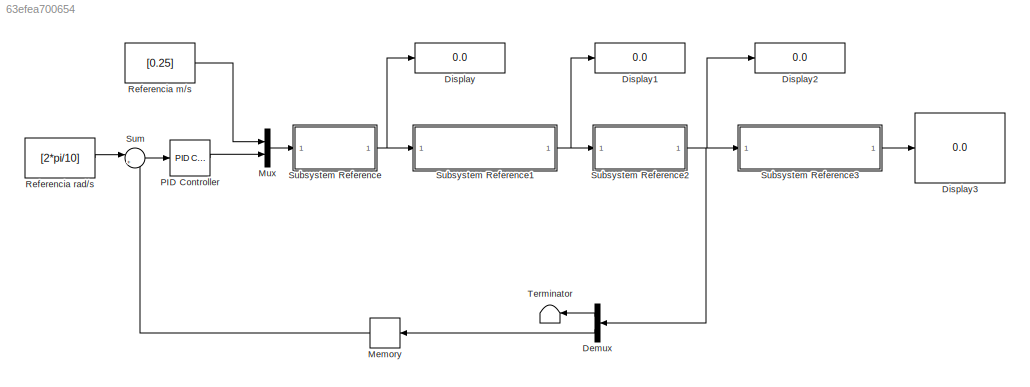
MODEL slx_63efea700654
KIND model
CONFIG AbsTol = auto
CONFIG EnableMultiTasking = on
CONFIG FixedStep = 0.01
CONFIG MaxStep = auto
CONFIG MinStep = auto
CONFIG RelTol = 1e-3
CONFIG SampleTimeConstraint = Unconstrained
CONFIG SolverName = FixedStepDiscrete
CONFIG StartTime = 0.0
CONFIG StopTime = 10.0
WORKSPACE source: mxarray member
WORKSPACE d = 0.195
BLOCK [Demux] Demux
  NameLocation = top
  Outputs = 2
BLOCK [Display] Display
  Decimation = 1
BLOCK [Display] Display1
  Decimation = 1
BLOCK [Display] Display2
  Decimation = 1
BLOCK [Display] Display3
  Decimation = 1
BLOCK [Memory] Memory
BLOCK [Mux] Mux
  DisplayOption = bar
  Inputs = 2
BLOCK [Reference] PID Controller  REF=slpidlib/PID Controller
  LibrarySourceBlock = simulink/Continuous/PID Controller
  SourceBlock = slpidlib/PID Controller
  SourceType = PID 1dof
BLOCK [Constant] Referencia m//s
  Value = [0.25]
BLOCK [Constant] Referencia rad//s
  Value = [2*pi/10]
BLOCK [SubSystem] Subsystem Reference
  ReferencedSubsystem = MCI
BLOCK [SubSystem] Subsystem Reference1
  ReferencedSubsystem = PieroControladoZ
BLOCK [SubSystem] Subsystem Reference2
  ReferencedSubsystem = MCD
BLOCK [SubSystem] Subsystem Reference3
  ReferencedSubsystem = OdometriaZ
BLOCK [Sum] Sum
  Inputs = |+-
BLOCK [Terminator] Terminator
  NameLocation = top
LINE Demux:1 -> Terminator:1
LINE Demux:2 -> Memory:1
LINE Memory:1 -> Sum:2
LINE Mux:1 -> Subsystem Reference:1
LINE PID Controller:1 -> Mux:2
LINE Referencia m//s:1 -> Mux:1
LINE Referencia rad//s:1 -> Sum:1
NET Subsystem Reference1:1 -> Display1:1, Subsystem Reference2:1
NET Subsystem Reference2:1 -> Demux:1, Display2:1, Subsystem Reference3:1
LINE Subsystem Reference3:1 -> Display3:1
NET Subsystem Reference:1 -> Display:1, Subsystem Reference1:1
LINE Sum:1 -> PID Controller:1
note: NET lines group one-source signal fan-out (src -> all destinations, sorted); 1:1 wires keep LINE
